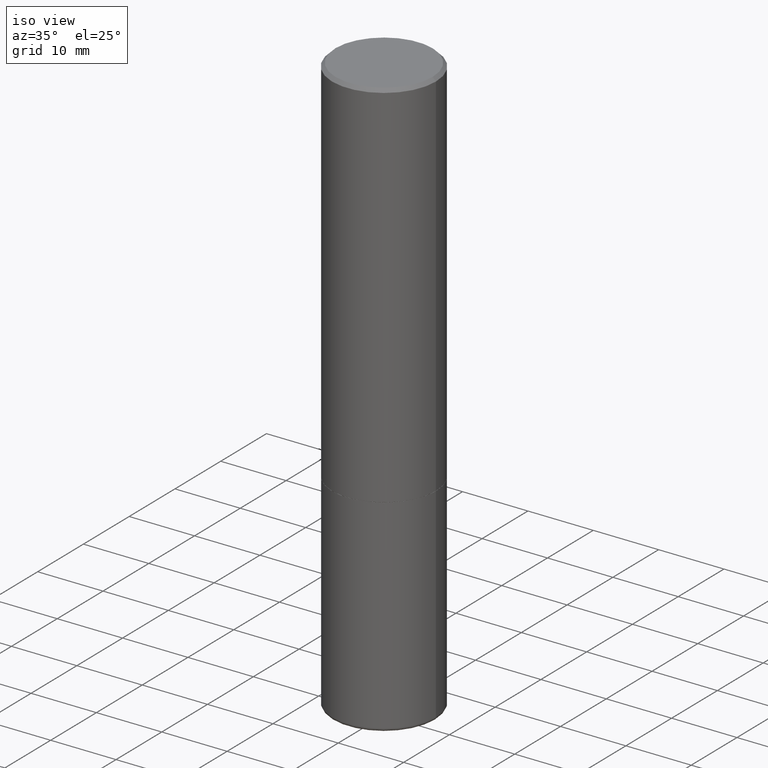
[diagram: clean part render]
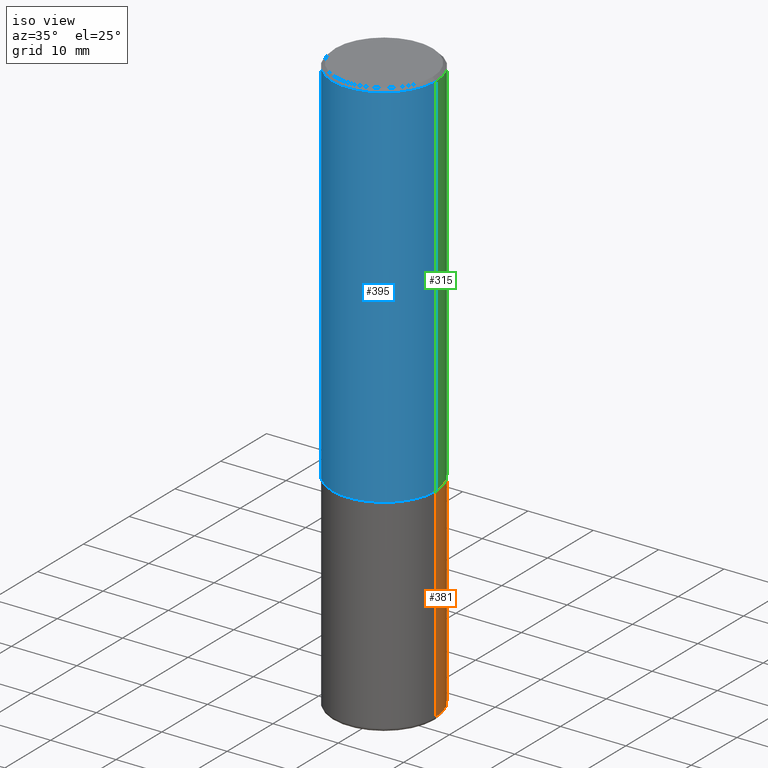
[diagram: same view with three faces highlighted in distinct colors, each labeled with its STEP entity id]
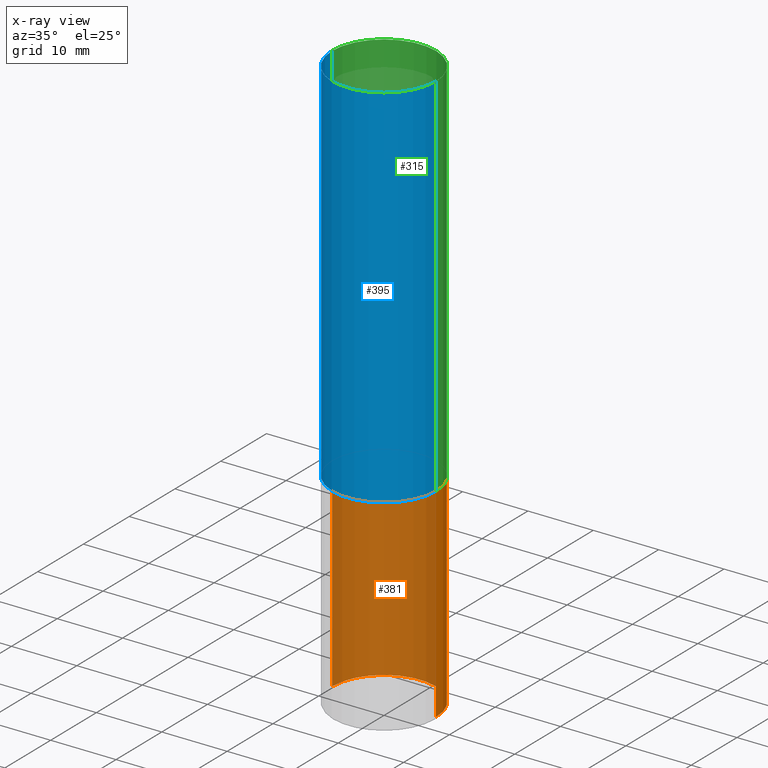
[diagram: x-ray of the same camera — body ghosted, the three highlighted faces saturated]
A machine part, iso view with three faces highlighted in distinct colors.
The next image is the same camera in x-ray (body ghosted, the three faces saturated) — at least one of them is partly hidden behind the body in this view.
Their STEP definitions:

[orange] entity #381 — the highlighted cylindrical surface (partial cylindrical patch) has radius 7.9375 mm, axis along (-0, 0, 1).
#8 = DIRECTION ( 'NONE',  ( -2.445468806185136597E-29, 3.491481338843145583E-15, 1.000000000000000000 ) ) ;
#16 = LINE ( 'NONE', #78, #64 ) ;
#17 = CARTESIAN_POINT ( 'NONE',  ( 0.3125000000000000000, -1.003800884917403364E-14, -2.249999999999999556 ) ) ;
#18 = EDGE_CURVE ( 'NONE', #414, #67, #16, .T. ) ;
#20 = EDGE_LOOP ( 'NONE', ( #237, #208, #104, #359 ) ) ;
#29 = CYLINDRICAL_SURFACE ( 'NONE', #59, 0.3124999999999998890 ) ;
#47 = DIRECTION ( 'NONE',  ( -2.445468806185136877E-29, 3.491481338843145188E-15, 1.000000000000000000 ) ) ;
#59 = AXIS2_PLACEMENT_3D ( 'NONE', #161, #406, #373 ) ;
#61 = FACE_OUTER_BOUND ( 'NONE', #20, .T. ) ;
#64 = VECTOR ( 'NONE', #47, 39.37007874015748143 ) ;
#67 = VERTEX_POINT ( 'NONE', #91 ) ;
#78 = CARTESIAN_POINT ( 'NONE',  ( -0.3124999999999998890, 2.220446049250312292E-15, -1.537167215704657391E-29 ) ) ;
#91 = CARTESIAN_POINT ( 'NONE',  ( -0.3125000000000000000, -7.782695836073597873E-15, -2.249999999999999556 ) ) ;
#92 = DIRECTION ( 'NONE',  ( 1.000000000000000000, -6.982962677686269077E-15, 0.000000000000000000 ) ) ;
#104 = ORIENTED_EDGE ( 'NONE', *, *, #224, .F. ) ;
#106 = CARTESIAN_POINT ( 'NONE',  ( -0.3124999999999997224, -7.782695836073599450E-15, -3.480027409304908392 ) ) ;
#116 = CARTESIAN_POINT ( 'NONE',  ( 5.502304813916556222E-29, -7.855833012397075293E-15, -2.249999999999999556 ) ) ;
#123 = AXIS2_PLACEMENT_3D ( 'NONE', #116, #8, #399 ) ;
#139 = DIRECTION ( 'NONE',  ( -2.445468806185136877E-29, 3.491481338843145188E-15, 1.000000000000000000 ) ) ;
#141 = VERTEX_POINT ( 'NONE', #17 ) ;
#158 = AXIS2_PLACEMENT_3D ( 'NONE', #336, #293, #92 ) ;
#161 = CARTESIAN_POINT ( 'NONE',  ( 0.000000000000000000, 0.000000000000000000, 0.000000000000000000 ) ) ;
#208 = ORIENTED_EDGE ( 'NONE', *, *, #18, .T. ) ;
#224 = EDGE_CURVE ( 'NONE', #141, #67, #425, .T. ) ;
#237 = ORIENTED_EDGE ( 'NONE', *, *, #356, .T. ) ;
#245 = EDGE_CURVE ( 'NONE', #308, #141, #391, .T. ) ;
#261 = CARTESIAN_POINT ( 'NONE',  ( 0.3124999999999997224, -1.433262659502770023E-14, -3.480027409304908392 ) ) ;
#293 = DIRECTION ( 'NONE',  ( -2.445468806185136597E-29, 3.491481338843145583E-15, 1.000000000000000000 ) ) ;
#308 = VERTEX_POINT ( 'NONE', #261 ) ;
#321 = CARTESIAN_POINT ( 'NONE',  ( 0.3124999999999998890, -2.182175836776957558E-15, 1.523805242436229235E-29 ) ) ;
#336 = CARTESIAN_POINT ( 'NONE',  ( 8.510298474124427942E-29, -1.215045075825074504E-14, -3.480027409304908392 ) ) ;
#340 = VECTOR ( 'NONE', #139, 39.37007874015748143 ) ;
#356 = EDGE_CURVE ( 'NONE', #308, #414, #364, .T. ) ;
#359 = ORIENTED_EDGE ( 'NONE', *, *, #245, .F. ) ;
#364 = CIRCLE ( 'NONE', #158, 0.3124999999999997224 ) ;
#373 = DIRECTION ( 'NONE',  ( 1.000000000000000000, -6.982962677686266711E-15, 4.876176775795935232E-29 ) ) ;
#381 = ADVANCED_FACE ( 'NONE', ( #61 ), #29, .T. ) ;
#391 = LINE ( 'NONE', #321, #340 ) ;
#399 = DIRECTION ( 'NONE',  ( 1.000000000000000000, -6.982962677686265133E-15, 0.000000000000000000 ) ) ;
#406 = DIRECTION ( 'NONE',  ( -2.445468806185136597E-29, 3.491481338843145583E-15, 1.000000000000000000 ) ) ;
#414 = VERTEX_POINT ( 'NONE', #106 ) ;
#425 = CIRCLE ( 'NONE', #123, 0.3125000000000000000 ) ;

[blue] entity #395 — the highlighted cylindrical surface (partial cylindrical patch) has radius 7.9375 mm, axis along (-0, 0, 1).
#14 = AXIS2_PLACEMENT_3D ( 'NONE', #222, #301, #438 ) ;
#22 = AXIS2_PLACEMENT_3D ( 'NONE', #197, #89, #226 ) ;
#27 = AXIS2_PLACEMENT_3D ( 'NONE', #401, #263, #192 ) ;
#30 = FACE_OUTER_BOUND ( 'NONE', #65, .T. ) ;
#39 = VECTOR ( 'NONE', #368, 39.37007874015748143 ) ;
#44 = CARTESIAN_POINT ( 'NONE',  ( 0.3125000000000000000, -1.003451736783519063E-14, -2.248999999999999222 ) ) ;
#62 = CARTESIAN_POINT ( 'NONE',  ( 0.3124999999999998890, -2.182175836776957558E-15, 1.523805242436229235E-29 ) ) ;
#65 = EDGE_LOOP ( 'NONE', ( #338, #107, #352, #275 ) ) ;
#72 = VERTEX_POINT ( 'NONE', #143 ) ;
#81 = CARTESIAN_POINT ( 'NONE',  ( -0.3124999999999998890, 2.220446049250312292E-15, -1.537167215704657391E-29 ) ) ;
#89 = DIRECTION ( 'NONE',  ( -2.445468806185136597E-29, 3.491481338843145583E-15, 1.000000000000000000 ) ) ;
#107 = ORIENTED_EDGE ( 'NONE', *, *, #397, .T. ) ;
#143 = CARTESIAN_POINT ( 'NONE',  ( -0.3124999999999998335, 2.112346210000093866E-15, -0.02000000000000001776 ) ) ;
#155 = EDGE_CURVE ( 'NONE', #187, #72, #210, .T. ) ;
#171 = VECTOR ( 'NONE', #357, 39.37007874015748143 ) ;
#175 = CARTESIAN_POINT ( 'NONE',  ( -0.3125000000000000000, -1.740639529667232739E-15, -2.248999999999999222 ) ) ;
#177 = VERTEX_POINT ( 'NONE', #44 ) ;
#187 = VERTEX_POINT ( 'NONE', #175 ) ;
#192 = DIRECTION ( 'NONE',  ( 1.000000000000000000, -6.982962677686269077E-15, 0.000000000000000000 ) ) ;
#197 = CARTESIAN_POINT ( 'NONE',  ( 4.890937612370276662E-31, -6.982962677686296539E-17, -0.02000000000000001776 ) ) ;
#210 = LINE ( 'NONE', #81, #171 ) ;
#216 = CIRCLE ( 'NONE', #27, 0.3125000000000000000 ) ;
#222 = CARTESIAN_POINT ( 'NONE',  ( 0.000000000000000000, 0.000000000000000000, 0.000000000000000000 ) ) ;
#226 = DIRECTION ( 'NONE',  ( 1.000000000000000000, -6.982962677686266711E-15, 0.000000000000000000 ) ) ;
#258 = EDGE_CURVE ( 'NONE', #72, #265, #294, .T. ) ;
#263 = DIRECTION ( 'NONE',  ( -2.445468806185136597E-29, 3.491481338843145583E-15, 1.000000000000000000 ) ) ;
#265 = VERTEX_POINT ( 'NONE', #407 ) ;
#275 = ORIENTED_EDGE ( 'NONE', *, *, #258, .F. ) ;
#294 = CIRCLE ( 'NONE', #22, 0.3124999999999998335 ) ;
#296 = CYLINDRICAL_SURFACE ( 'NONE', #14, 0.3124999999999998890 ) ;
#301 = DIRECTION ( 'NONE',  ( -2.445468806185136597E-29, 3.491481338843145583E-15, 1.000000000000000000 ) ) ;
#325 = EDGE_CURVE ( 'NONE', #177, #265, #376, .T. ) ;
#338 = ORIENTED_EDGE ( 'NONE', *, *, #155, .F. ) ;
#352 = ORIENTED_EDGE ( 'NONE', *, *, #325, .T. ) ;
#357 = DIRECTION ( 'NONE',  ( -2.445468806185136877E-29, 3.491481338843145188E-15, 1.000000000000000000 ) ) ;
#368 = DIRECTION ( 'NONE',  ( -2.445468806185136877E-29, 3.491481338843145188E-15, 1.000000000000000000 ) ) ;
#376 = LINE ( 'NONE', #62, #39 ) ;
#395 = ADVANCED_FACE ( 'NONE', ( #30 ), #296, .T. ) ;
#397 = EDGE_CURVE ( 'NONE', #187, #177, #216, .T. ) ;
#401 = CARTESIAN_POINT ( 'NONE',  ( 5.499859345110370619E-29, -7.852341531058232286E-15, -2.248999999999999222 ) ) ;
#407 = CARTESIAN_POINT ( 'NONE',  ( 0.3124999999999998335, -2.213735251080465334E-15, -0.02000000000000001776 ) ) ;
#438 = DIRECTION ( 'NONE',  ( 1.000000000000000000, -6.982962677686266711E-15, 4.876176775795935232E-29 ) ) ;

[green] entity #315 — the highlighted cylindrical surface (partial cylindrical patch) has radius 7.9375 mm, axis along (-0, 0, 1).
#2 = CIRCLE ( 'NONE', #252, 0.3124999999999998335 ) ;
#7 = ORIENTED_EDGE ( 'NONE', *, *, #155, .T. ) ;
#24 = DIRECTION ( 'NONE',  ( 1.000000000000000000, -6.982962677686266711E-15, 0.000000000000000000 ) ) ;
#35 = EDGE_LOOP ( 'NONE', ( #347, #7, #75, #212 ) ) ;
#39 = VECTOR ( 'NONE', #368, 39.37007874015748143 ) ;
#44 = CARTESIAN_POINT ( 'NONE',  ( 0.3125000000000000000, -1.003451736783519063E-14, -2.248999999999999222 ) ) ;
#62 = CARTESIAN_POINT ( 'NONE',  ( 0.3124999999999998890, -2.182175836776957558E-15, 1.523805242436229235E-29 ) ) ;
#72 = VERTEX_POINT ( 'NONE', #143 ) ;
#75 = ORIENTED_EDGE ( 'NONE', *, *, #211, .F. ) ;
#81 = CARTESIAN_POINT ( 'NONE',  ( -0.3124999999999998890, 2.220446049250312292E-15, -1.537167215704657391E-29 ) ) ;
#94 = FACE_OUTER_BOUND ( 'NONE', #35, .T. ) ;
#130 = EDGE_CURVE ( 'NONE', #177, #187, #420, .T. ) ;
#131 = CYLINDRICAL_SURFACE ( 'NONE', #146, 0.3124999999999998890 ) ;
#143 = CARTESIAN_POINT ( 'NONE',  ( -0.3124999999999998335, 2.112346210000093866E-15, -0.02000000000000001776 ) ) ;
#146 = AXIS2_PLACEMENT_3D ( 'NONE', #402, #229, #432 ) ;
#155 = EDGE_CURVE ( 'NONE', #187, #72, #210, .T. ) ;
#171 = VECTOR ( 'NONE', #357, 39.37007874015748143 ) ;
#175 = CARTESIAN_POINT ( 'NONE',  ( -0.3125000000000000000, -1.740639529667232739E-15, -2.248999999999999222 ) ) ;
#177 = VERTEX_POINT ( 'NONE', #44 ) ;
#187 = VERTEX_POINT ( 'NONE', #175 ) ;
#210 = LINE ( 'NONE', #81, #171 ) ;
#211 = EDGE_CURVE ( 'NONE', #265, #72, #2, .T. ) ;
#212 = ORIENTED_EDGE ( 'NONE', *, *, #325, .F. ) ;
#229 = DIRECTION ( 'NONE',  ( -2.445468806185136597E-29, 3.491481338843145583E-15, 1.000000000000000000 ) ) ;
#238 = DIRECTION ( 'NONE',  ( -2.445468806185136597E-29, 3.491481338843145583E-15, 1.000000000000000000 ) ) ;
#252 = AXIS2_PLACEMENT_3D ( 'NONE', #309, #274, #24 ) ;
#265 = VERTEX_POINT ( 'NONE', #407 ) ;
#274 = DIRECTION ( 'NONE',  ( -2.445468806185136597E-29, 3.491481338843145583E-15, 1.000000000000000000 ) ) ;
#309 = CARTESIAN_POINT ( 'NONE',  ( 4.890937612370276662E-31, -6.982962677686296539E-17, -0.02000000000000001776 ) ) ;
#315 = ADVANCED_FACE ( 'NONE', ( #94 ), #131, .T. ) ;
#325 = EDGE_CURVE ( 'NONE', #177, #265, #376, .T. ) ;
#347 = ORIENTED_EDGE ( 'NONE', *, *, #130, .T. ) ;
#357 = DIRECTION ( 'NONE',  ( -2.445468806185136877E-29, 3.491481338843145188E-15, 1.000000000000000000 ) ) ;
#363 = DIRECTION ( 'NONE',  ( 1.000000000000000000, -6.982962677686269077E-15, 0.000000000000000000 ) ) ;
#368 = DIRECTION ( 'NONE',  ( -2.445468806185136877E-29, 3.491481338843145188E-15, 1.000000000000000000 ) ) ;
#370 = AXIS2_PLACEMENT_3D ( 'NONE', #422, #238, #363 ) ;
#376 = LINE ( 'NONE', #62, #39 ) ;
#402 = CARTESIAN_POINT ( 'NONE',  ( 0.000000000000000000, 0.000000000000000000, 0.000000000000000000 ) ) ;
#407 = CARTESIAN_POINT ( 'NONE',  ( 0.3124999999999998335, -2.213735251080465334E-15, -0.02000000000000001776 ) ) ;
#420 = CIRCLE ( 'NONE', #370, 0.3125000000000000000 ) ;
#422 = CARTESIAN_POINT ( 'NONE',  ( 5.499859345110370619E-29, -7.852341531058232286E-15, -2.248999999999999222 ) ) ;
#432 = DIRECTION ( 'NONE',  ( 1.000000000000000000, -6.982962677686266711E-15, 4.876176775795935232E-29 ) ) ;